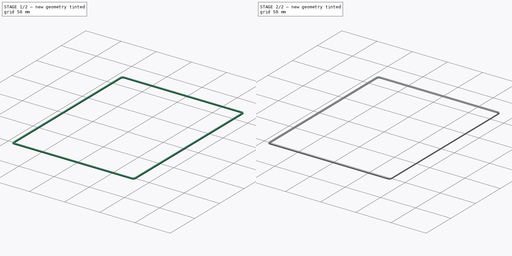
[diagram: build sequence overview — one tinted view per stage of 2, left to right]
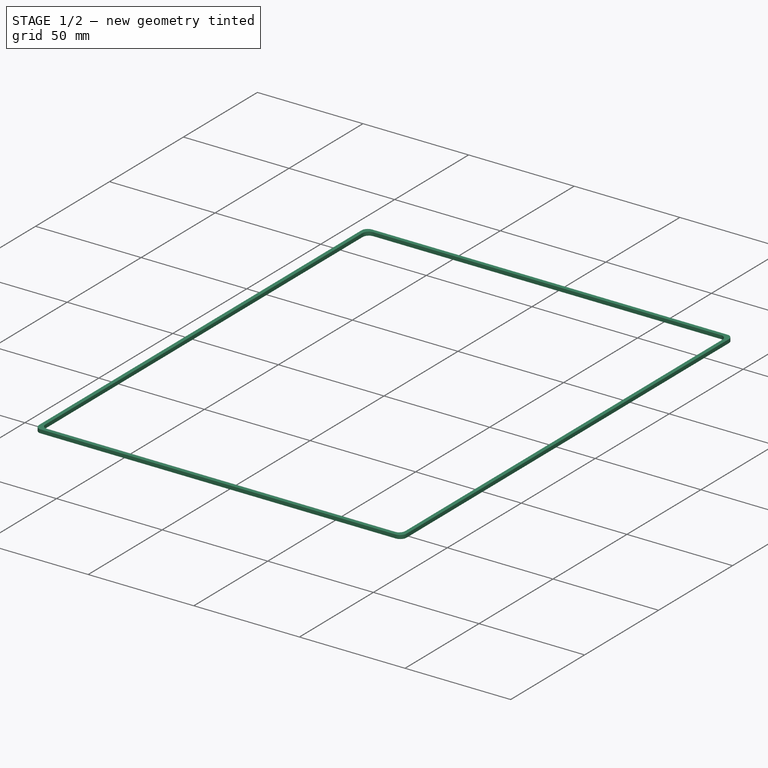
[diagram: stage 1 of 2 — iso view after this stage's code; geometry added in this stage tinted green]
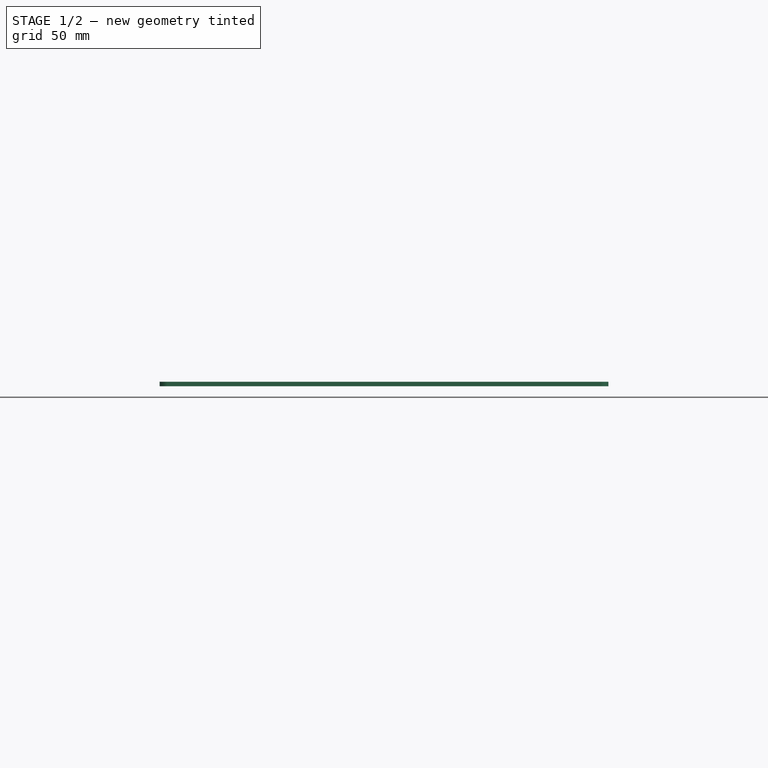
[diagram: stage 1 of 2 — front view after this stage's code; geometry added in this stage tinted green]
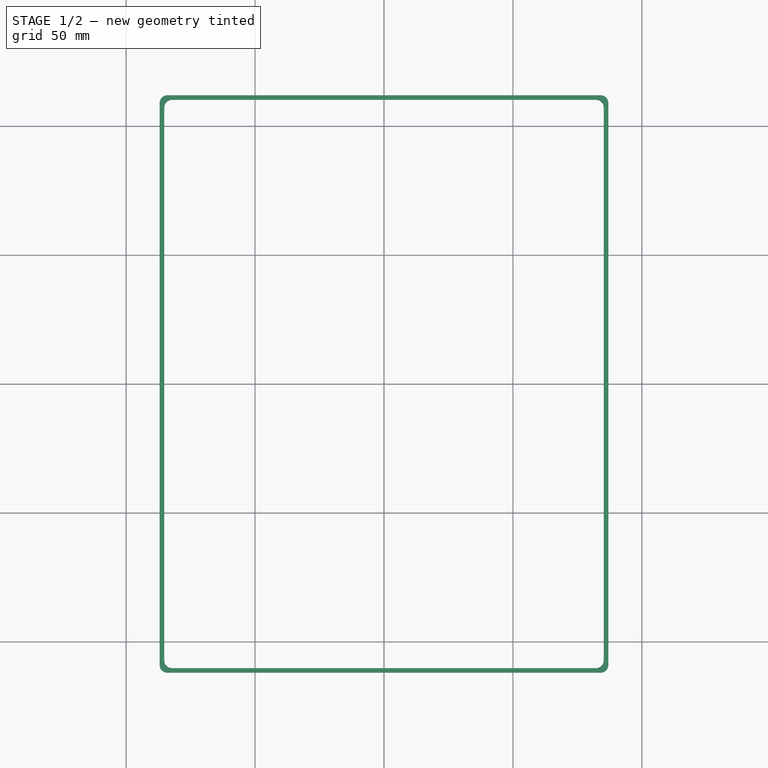
[diagram: stage 1 of 2 — top view after this stage's code; geometry added in this stage tinted green]
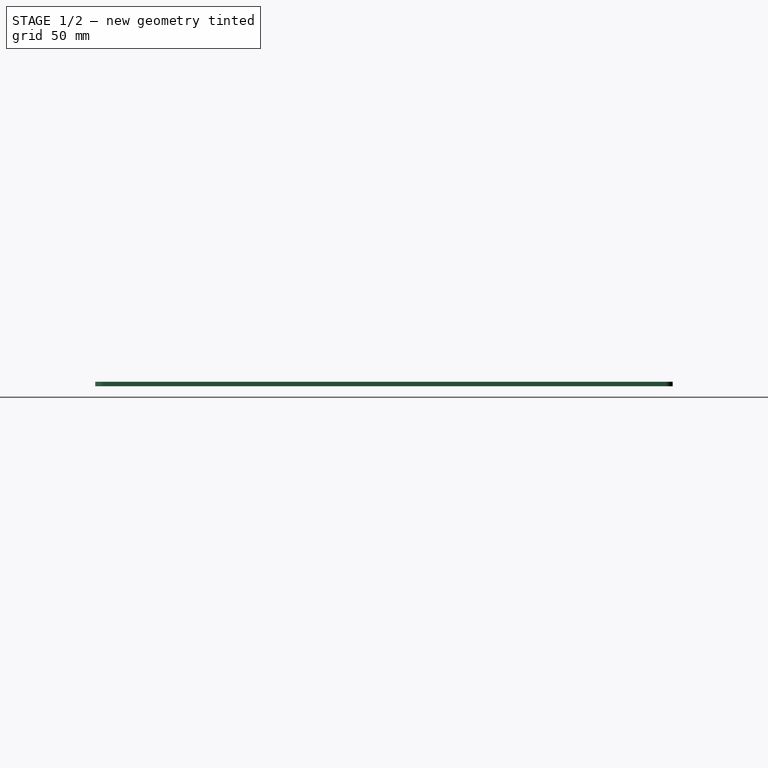
[diagram: stage 1 of 2 — right view after this stage's code; geometry added in this stage tinted green]
FCSTD DOCUMENT  (FreeCAD 0.20R29603 (Git))
Label: Vedação tampa
License: All rights reserved
LicenseURL: http://en.wikipedia.org/wiki/All_rights_reserved
objects: Sketcher::SketchObject×1, PartDesign::Pad×1, PartDesign::Fillet×1, PartDesign::Chamfer×1, PartDesign::Body×1
note: 8 computed .brp shape members not serialized (recipe doc carries the construction recipe); baked Part::Feature solids carry a one-line shape summary decoded from their .brp

FEATURE [Sketcher::SketchObject] Sketch
  FullyConstrained = true
  MapMode = 5
  Support = -> [XY_Plane]
  sketch-geometry (10):
    g0: LineSegment StartX=-87 StartY=-112 StartZ=0 EndX=-87 EndY=112 EndZ=0
    g1: LineSegment StartX=-87 StartY=112 StartZ=0 EndX=87 EndY=112 EndZ=0
    g2: LineSegment StartX=87 StartY=112 StartZ=0 EndX=87 EndY=-112 EndZ=0
    g3: LineSegment StartX=87 StartY=-112 StartZ=0 EndX=-87 EndY=-112 EndZ=0
    g4: GeomPoint X=0 Y=0 Z=0
    g5: LineSegment StartX=-85.2 StartY=-110.2 StartZ=0 EndX=-85.2 EndY=110.2 EndZ=0
    g6: LineSegment StartX=-85.2 StartY=110.2 StartZ=0 EndX=85.2 EndY=110.2 EndZ=0
    g7: LineSegment StartX=85.2 StartY=110.2 StartZ=0 EndX=85.2 EndY=-110.2 EndZ=0
    g8: LineSegment StartX=85.2 StartY=-110.2 StartZ=0 EndX=-85.2 EndY=-110.2 EndZ=0
    g9: GeomPoint X=0 Y=0 Z=0
  constraints (24):
    c: Coincident(g0,g1)
    c: Coincident(g1,g2)
    c: Coincident(g2,g3)
    c: Coincident(g3,g0)
    c: Horizontal(g1)
    c: Horizontal(g3)
    c: Vertical(g0)
    c: Vertical(g2)
    c: Symmetric(g1,g0,g4)
    c: Coincident(g4,g-1)
    c: Coincident(g5,g6)
    c: Coincident(g6,g7)
    c: Coincident(g7,g8)
    c: Coincident(g8,g5)
    c: Horizontal(g6)
    c: Horizontal(g8)
    c: Vertical(g5)
    c: Vertical(g7)
    c: Symmetric(g6,g5,g9)
    c: Coincident(g9,g4)
    c: DistanceX(g6,g1) = 1.8
    c: DistanceY(g6,g1) = 1.8
    c: DistanceX(g1,g1) = 174
    c: DistanceY(g2,g2) = 224
FEATURE [PartDesign::Pad] Pad
  Direction = (0,0,1)
  Length = 1.7
  Length2 = 10
  Profile = -> Sketch
  ReferenceAxis = -> Sketch [N_Axis]
  Type = 0
FEATURE [PartDesign::Fillet] Fillet
  Base = -> Pad [Edge13,Edge1,Edge8,Edge20,Edge5,Edge17,Edge14,Edge2]
  BaseFeature = -> Pad
  Radius = 3
  SupportTransform = false
  UseAllEdges = false
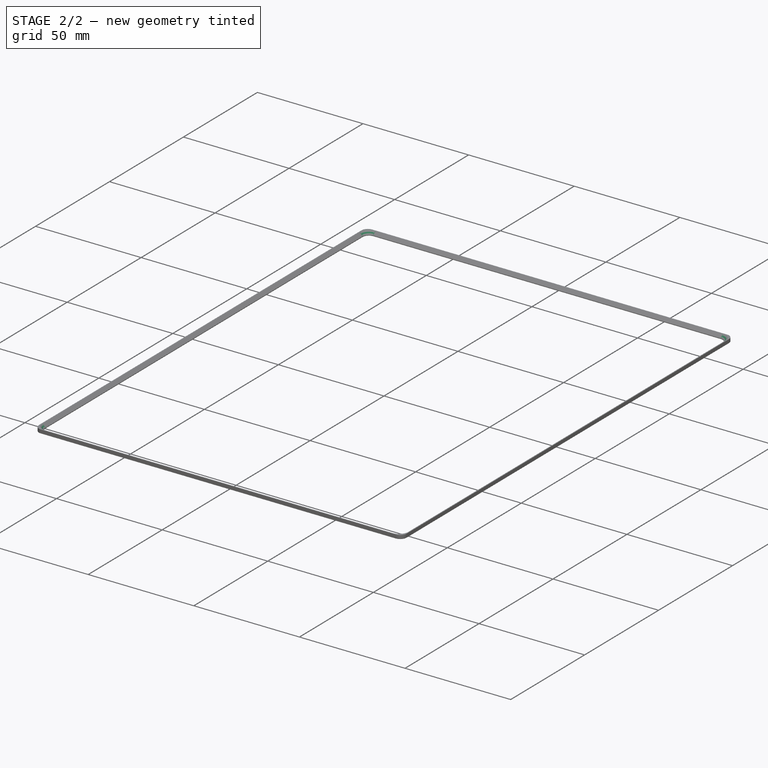
[diagram: stage 2 of 2 — iso view after this stage's code; geometry added in this stage tinted green]
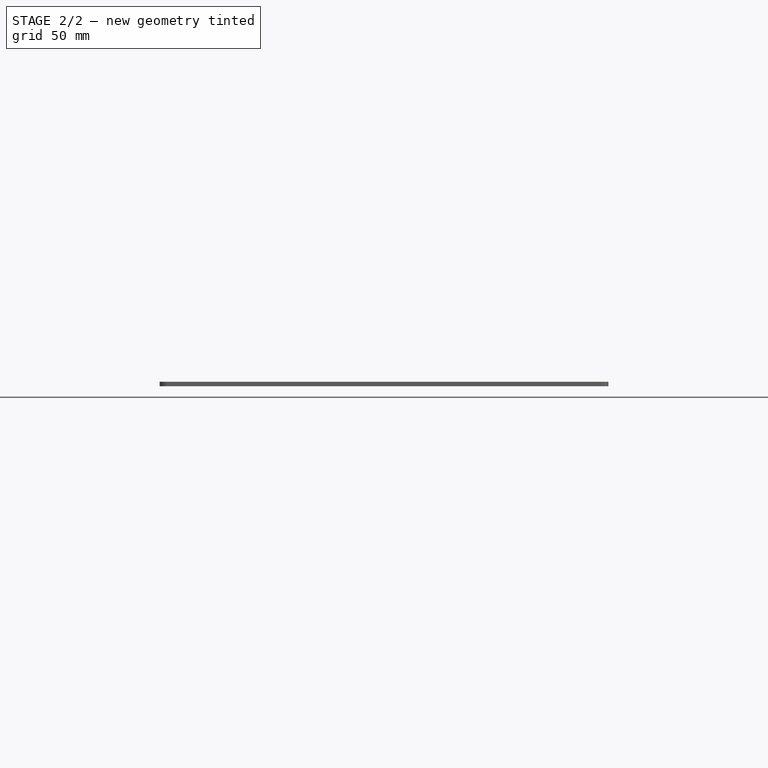
[diagram: stage 2 of 2 — front view after this stage's code; geometry added in this stage tinted green]
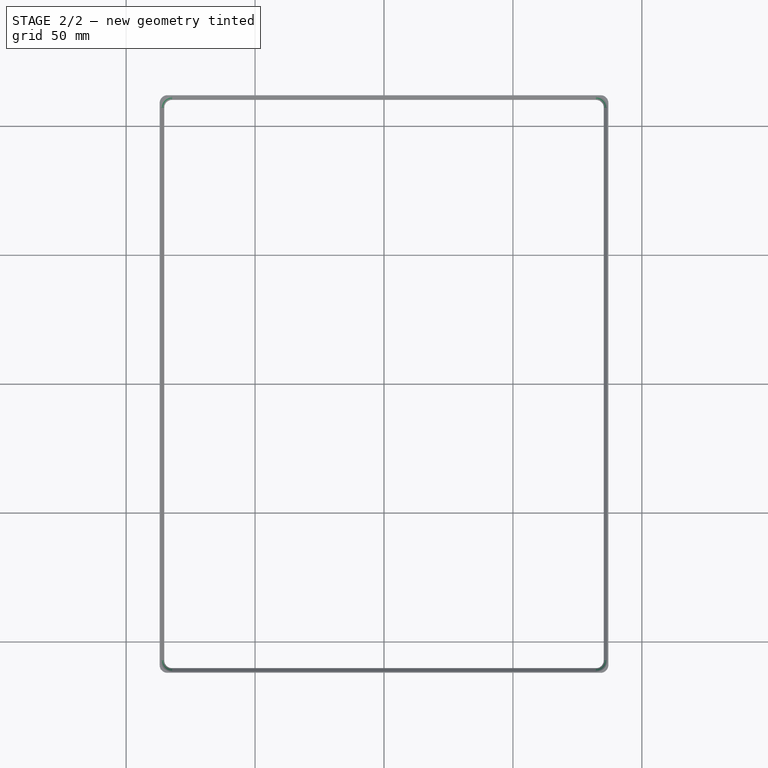
[diagram: stage 2 of 2 — top view after this stage's code; geometry added in this stage tinted green]
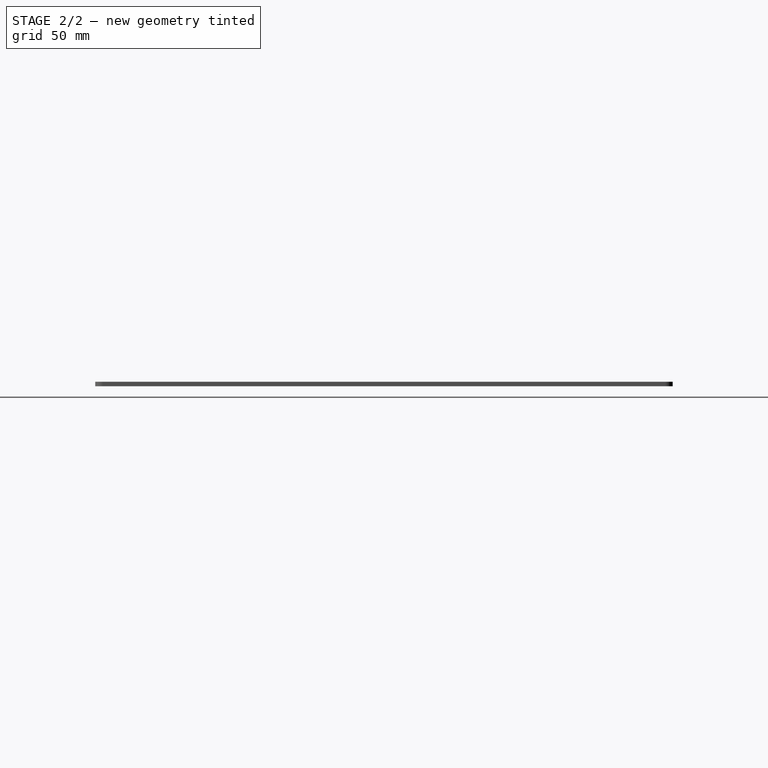
[diagram: stage 2 of 2 — right view after this stage's code; geometry added in this stage tinted green]
FEATURE [PartDesign::Chamfer] Chamfer
  Angle = 45
  Base = -> Fillet [Edge30]
  BaseFeature = -> Fillet
  ChamferType = 0
  FlipDirection = false
  Size = 1.4
  Size2 = 1
  SupportTransform = false
  UseAllEdges = false
FEATURE [PartDesign::Body] Body
  Group = -> [Sketch,Pad,Fillet,Chamfer]
  Origin = -> Origin
  Tip = -> Chamfer
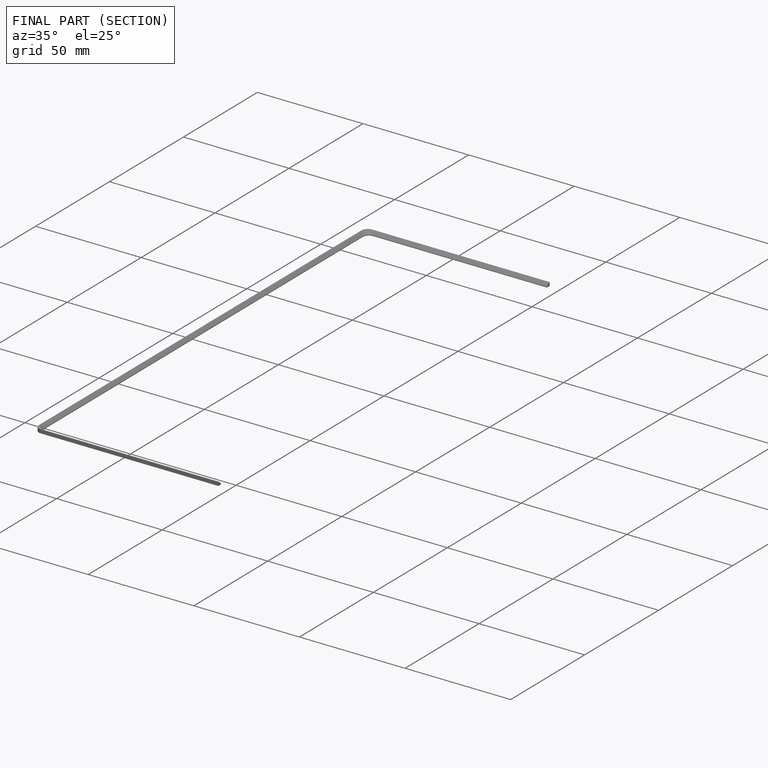
[diagram: finished part — half-section view (interior)]
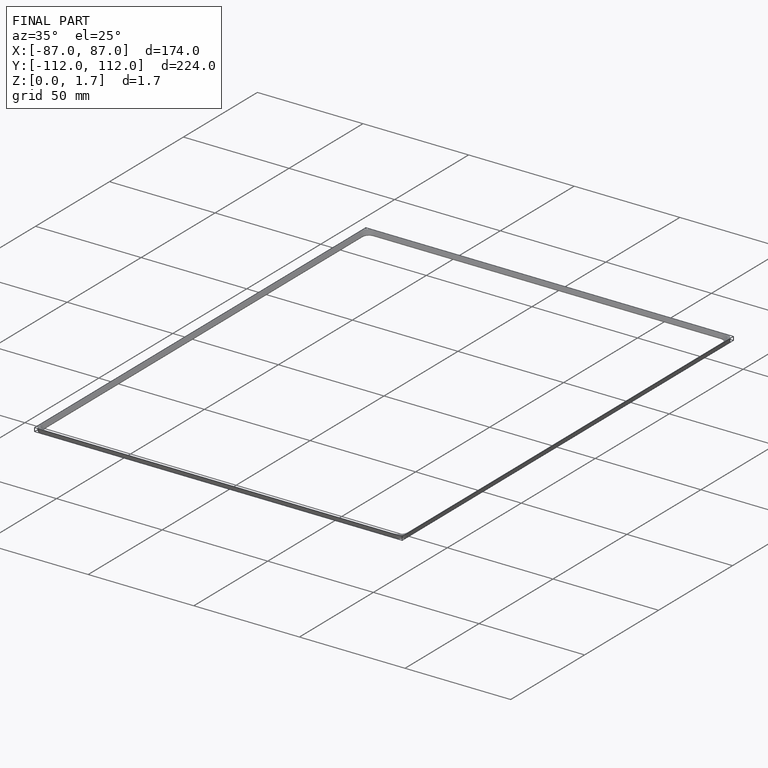
[diagram: finished part — iso view with bounding-box wireframe]
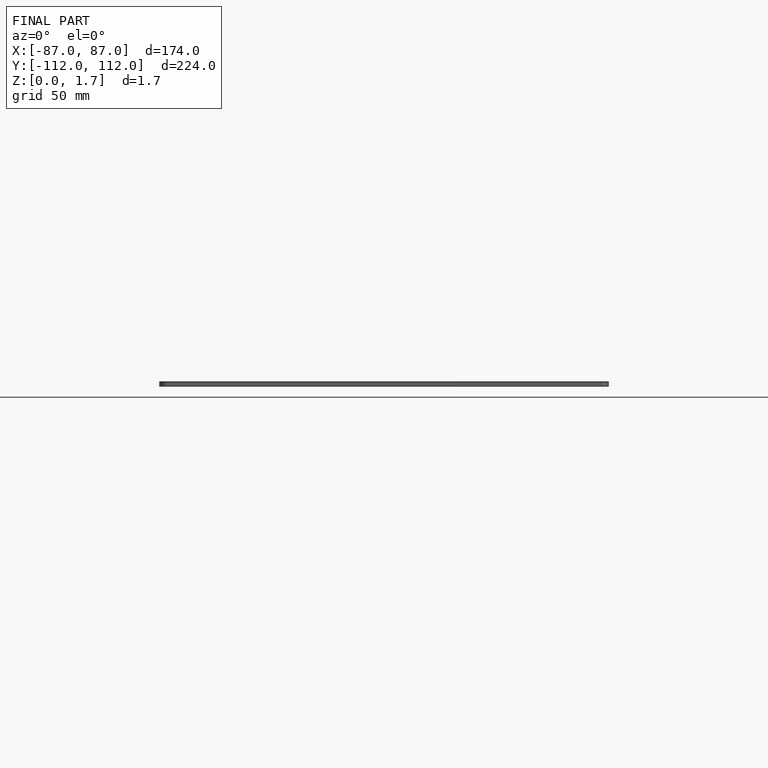
[diagram: finished part — front view with bounding-box wireframe]
